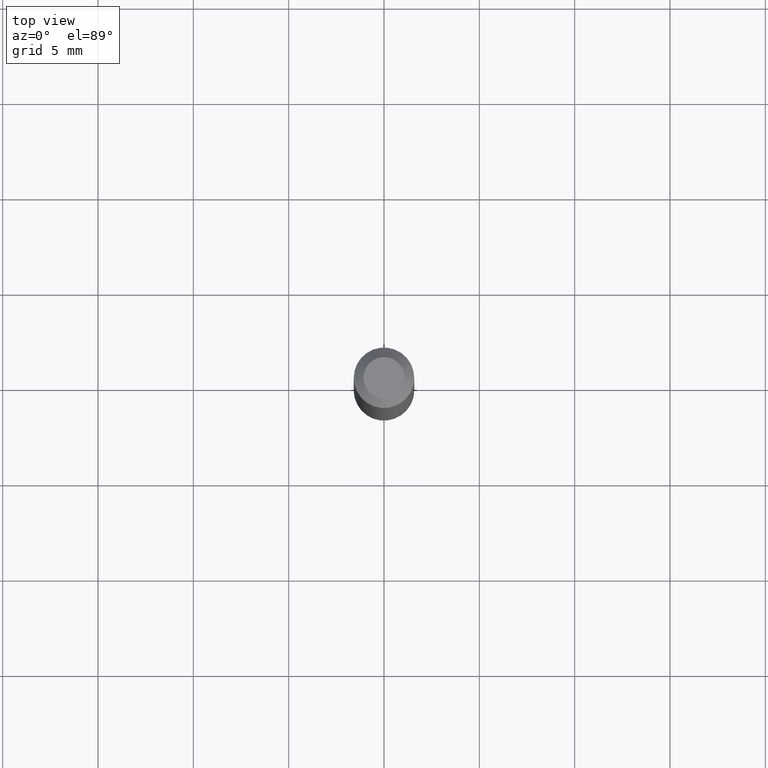
[diagram: clean part render]
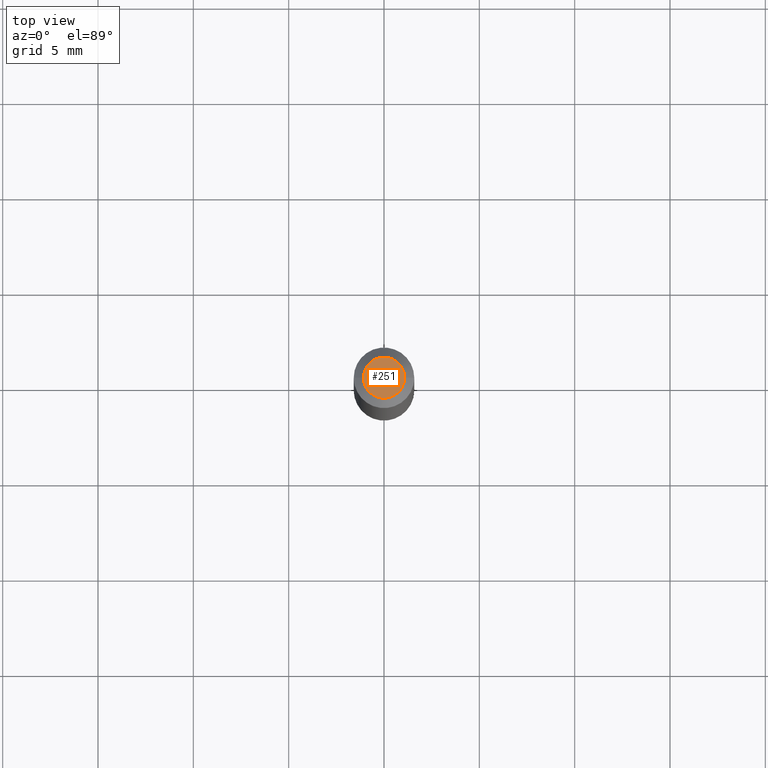
[diagram: same view with one face highlighted and labeled with its STEP entity id]
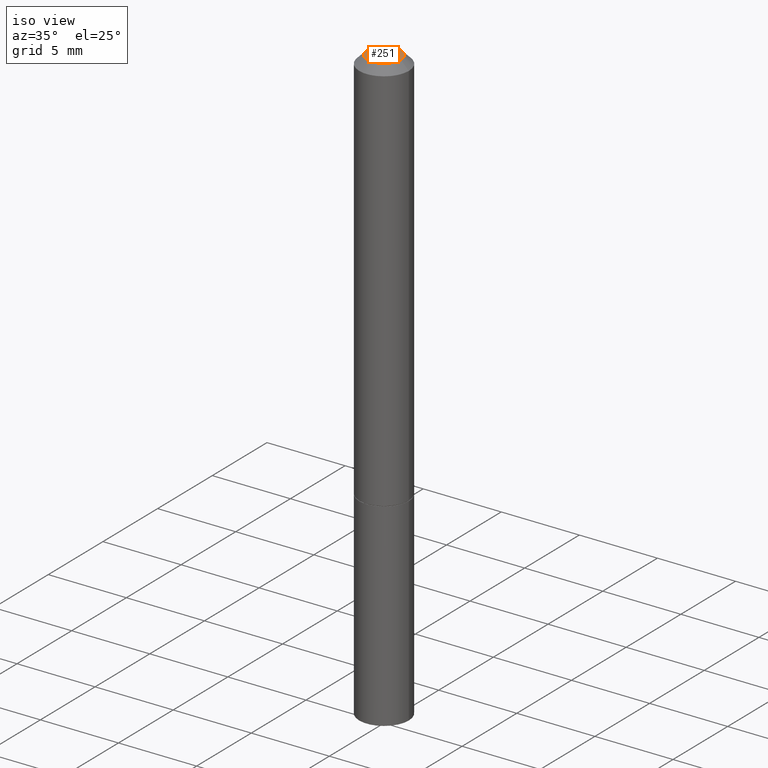
[diagram: same view with one face highlighted and labeled with its STEP entity id]
A machine part, top view. The second image highlights one B-rep face of the part: STEP entity #251.
A second angle (iso view) of the same face is appended — the face is thin or edge-on in the first view.
In plain terms, the highlighted planar face has unit normal (0, -0, -1).
Its self-contained STEP definition (entity closure, byte-faithful):
#1 = EDGE_LOOP ( 'NONE', ( #99, #8 ) ) ;
#8 = ORIENTED_EDGE ( 'NONE', *, *, #285, .T. ) ;
#20 = VERTEX_POINT ( 'NONE', #140 ) ;
#21 = EDGE_CURVE ( 'NONE', #308, #20, #150, .T. ) ;
#23 = FACE_OUTER_BOUND ( 'NONE', #1, .T. ) ;
#56 = DIRECTION ( 'NONE',  ( 1.000000000000000000, -6.982962677686267499E-15, 4.876176775795935232E-29 ) ) ;
#88 = AXIS2_PLACEMENT_3D ( 'NONE', #174, #292, #329 ) ;
#99 = ORIENTED_EDGE ( 'NONE', *, *, #21, .T. ) ;
#117 = DIRECTION ( 'NONE',  ( -1.000000000000000000, 6.982962677686265922E-15, -4.876176775795935793E-29 ) ) ;
#125 = AXIS2_PLACEMENT_3D ( 'NONE', #317, #163, #56 ) ;
#140 = CARTESIAN_POINT ( 'NONE',  ( 0.04249999999999991979, -3.950909582714362022E-16, 2.418776950579056541E-30 ) ) ;
#144 = CARTESIAN_POINT ( 'NONE',  ( -0.04249999999999991979, 3.316907271900968700E-16, -2.197416226880216810E-30 ) ) ;
#150 = CIRCLE ( 'NONE', #125, 0.04249999999999991979 ) ;
#163 = DIRECTION ( 'NONE',  ( -2.445468806185136597E-29, 3.491481338843145583E-15, 1.000000000000000000 ) ) ;
#171 = PLANE ( 'NONE',  #259 ) ;
#174 = CARTESIAN_POINT ( 'NONE',  ( 0.000000000000000000, 0.000000000000000000, 0.000000000000000000 ) ) ;
#214 = DIRECTION ( 'NONE',  ( 2.438088387897960049E-29, -3.491481338843145188E-15, -1.000000000000000000 ) ) ;
#238 = CIRCLE ( 'NONE', #88, 0.04249999999999991979 ) ;
#251 = ADVANCED_FACE ( 'NONE', ( #23 ), #171, .F. ) ;
#259 = AXIS2_PLACEMENT_3D ( 'NONE', #326, #214, #117 ) ;
#285 = EDGE_CURVE ( 'NONE', #20, #308, #238, .T. ) ;
#292 = DIRECTION ( 'NONE',  ( -2.445468806185136597E-29, 3.491481338843145583E-15, 1.000000000000000000 ) ) ;
#308 = VERTEX_POINT ( 'NONE', #144 ) ;
#317 = CARTESIAN_POINT ( 'NONE',  ( 0.000000000000000000, 0.000000000000000000, 0.000000000000000000 ) ) ;
#326 = CARTESIAN_POINT ( 'NONE',  ( 2.967759138016657633E-16, 0.04249999999999991979, -1.483879569008334240E-16 ) ) ;
#329 = DIRECTION ( 'NONE',  ( 1.000000000000000000, -6.982962677686267499E-15, 4.876176775795935232E-29 ) ) ;